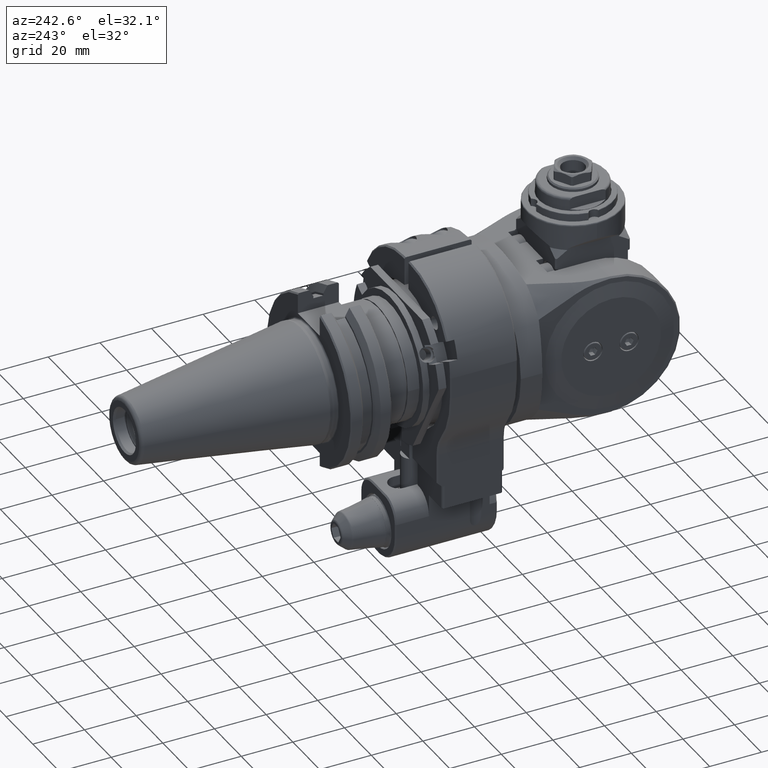
[diagram: clean part render]
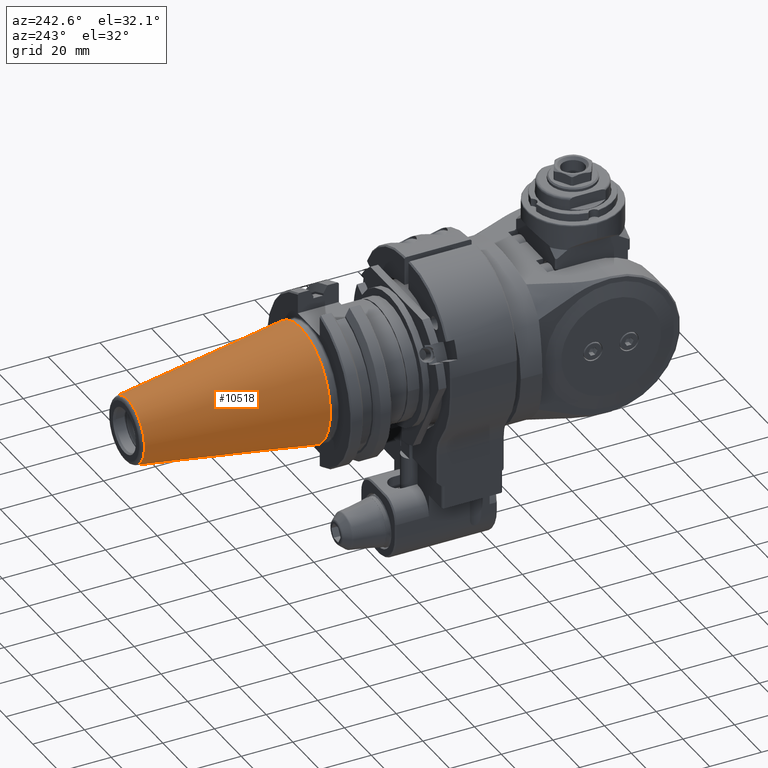
[diagram: same view with one face highlighted and labeled with its STEP entity id]
A machine part, auxiliary view. The second image highlights one B-rep face of the part: STEP entity #10518.
In plain terms, the highlighted conical surface has half-angle 8.297 deg.
Its self-contained STEP definition (entity closure, byte-faithful):
#297=CONICAL_SURFACE('',#11643,17.34203190906,0.144812411498922);
#1144=LINE('',#20088,#1980);
#1980=VECTOR('',#14632,17.34203190906);
#2824=FACE_OUTER_BOUND('',#3515,.T.);
#3515=EDGE_LOOP('',(#9455,#9456,#9457,#9458,#9459));
#4021=CIRCLE('',#11642,22.225);
#4022=CIRCLE('',#11644,12.45906381812);
#4023=CIRCLE('',#11645,12.45906381812);
#5008=VERTEX_POINT('',#20083);
#5009=VERTEX_POINT('',#20087);
#5010=VERTEX_POINT('',#20089);
#6500=EDGE_CURVE('',#5008,#5008,#4021,.T.);
#6502=EDGE_CURVE('',#5008,#5009,#1144,.T.);
#6503=EDGE_CURVE('',#5010,#5009,#4022,.T.);
#6504=EDGE_CURVE('',#5009,#5010,#4023,.T.);
#9455=ORIENTED_EDGE('',*,*,#6500,.F.);
#9456=ORIENTED_EDGE('',*,*,#6502,.T.);
#9457=ORIENTED_EDGE('',*,*,#6503,.F.);
#9458=ORIENTED_EDGE('',*,*,#6504,.F.);
#9459=ORIENTED_EDGE('',*,*,#6502,.F.);
#10518=ADVANCED_FACE('',(#2824),#297,.T.);
#11642=AXIS2_PLACEMENT_3D('',#20084,#14627,#14628);
#11643=AXIS2_PLACEMENT_3D('',#20086,#14630,#14631);
#11644=AXIS2_PLACEMENT_3D('',#20090,#14633,#14634);
#11645=AXIS2_PLACEMENT_3D('',#20091,#14635,#14636);
#14627=DIRECTION('center_axis',(0.,-1.,0.));
#14628=DIRECTION('ref_axis',(0.,0.,-1.));
#14630=DIRECTION('center_axis',(0.,-1.,0.));
#14631=DIRECTION('ref_axis',(0.,0.,1.));
#14632=DIRECTION('',(-1.76724869581176E-17,0.98953299358046,0.144306807239621));
#14633=DIRECTION('center_axis',(0.,1.,0.));
#14634=DIRECTION('ref_axis',(0.,0.,-1.));
#14635=DIRECTION('center_axis',(0.,1.,0.));
#14636=DIRECTION('ref_axis',(0.,0.,-1.));
#20083=CARTESIAN_POINT('',(-2.72177751110459E-15,67.0000000446609,-22.2249999999967));
#20084=CARTESIAN_POINT('Origin',(0.,67.00000004466,0.));
#20086=CARTESIAN_POINT('Origin',(0.,100.4832301501,0.));
#20087=CARTESIAN_POINT('',(0.,133.9664602555,-12.45906381812));
#20088=CARTESIAN_POINT('',(2.12378638681416E-15,100.4832301501,-17.34203190906));
#20089=CARTESIAN_POINT('',(-1.52579526252333E-15,133.9664602555,12.45906381812));
#20090=CARTESIAN_POINT('Origin',(0.,133.9664602555,0.));
#20091=CARTESIAN_POINT('Origin',(0.,133.9664602555,0.));